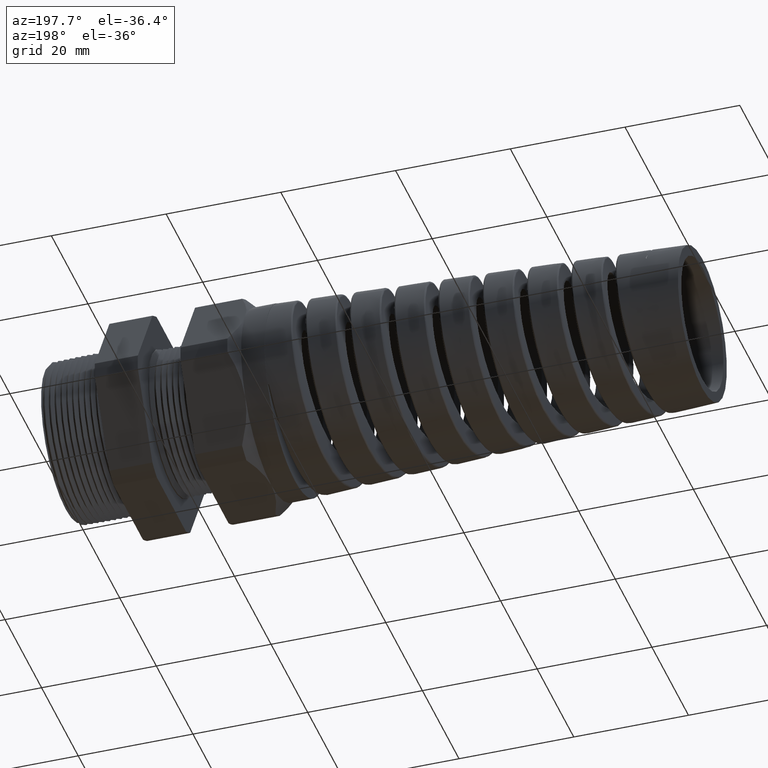
[diagram: clean part render]
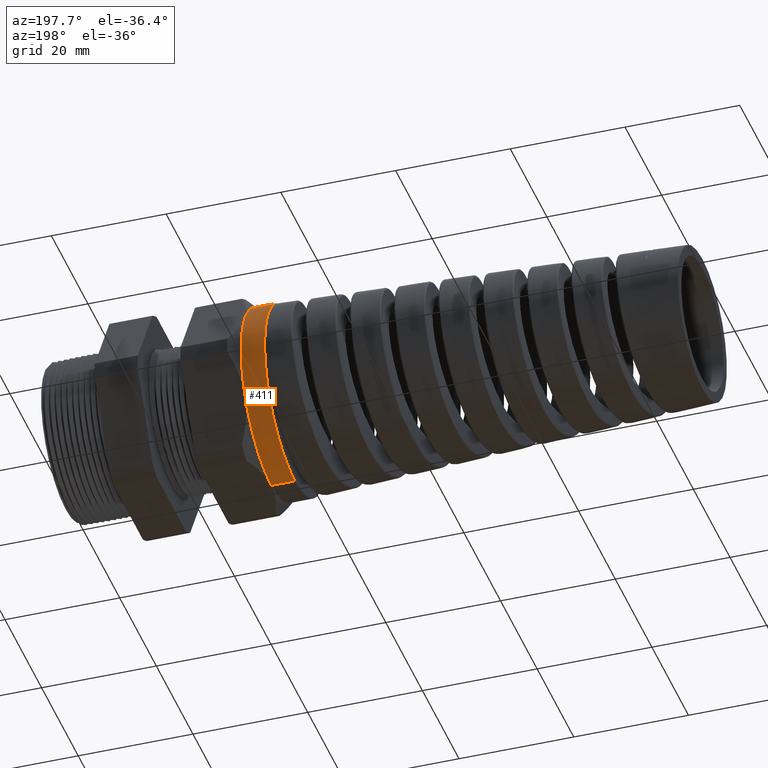
[diagram: same view with one face highlighted and labeled with its STEP entity id]
A machine part, auxiliary view. The second image highlights one B-rep face of the part: STEP entity #411.
In plain terms, the highlighted cylindrical surface (partial cylindrical patch) has radius 16.51 mm, axis along (1, 0, 0).
Its self-contained STEP definition (entity closure, byte-faithful):
#396 = EDGE_CURVE ( 'NONE', #397, #476, #2125, .T. ) ;
#397 = VERTEX_POINT ( 'NONE', #2120 ) ;
#398 = ORIENTED_EDGE ( 'NONE', *, *, #399, .F. ) ;
#399 = EDGE_CURVE ( 'NONE', #400, #397, #2119, .T. ) ;
#400 = VERTEX_POINT ( 'NONE', #2114 ) ;
#401 = ORIENTED_EDGE ( 'NONE', *, *, #402, .F. ) ;
#402 = EDGE_CURVE ( 'NONE', #416, #400, #2113, .T. ) ;
#411 = ADVANCED_FACE ( 'NONE', ( #2202 ), #2229, .T. ) ;
#412 = EDGE_LOOP ( 'NONE', ( #413, #417, #474, #477, #398, #401 ) ) ;
#413 = ORIENTED_EDGE ( 'NONE', *, *, #414, .F. ) ;
#414 = EDGE_CURVE ( 'NONE', #415, #416, #2224, .T. ) ;
#415 = VERTEX_POINT ( 'NONE', #2220 ) ;
#416 = VERTEX_POINT ( 'NONE', #2219 ) ;
#417 = ORIENTED_EDGE ( 'NONE', *, *, #472, .T. ) ;
#472 = EDGE_CURVE ( 'NONE', #415, #473, #2712, .T. ) ;
#473 = VERTEX_POINT ( 'NONE', #2704 ) ;
#474 = ORIENTED_EDGE ( 'NONE', *, *, #475, .F. ) ;
#475 = EDGE_CURVE ( 'NONE', #476, #473, #2783, .T. ) ;
#476 = VERTEX_POINT ( 'NONE', #2778 ) ;
#477 = ORIENTED_EDGE ( 'NONE', *, *, #396, .F. ) ;
#2110 = DIRECTION ( 'NONE',  ( 1.000000000000000000, 0.0000000000000000000, 0.0000000000000000000 ) ) ;
#2111 = VECTOR ( 'NONE', #2110, 39.37007874015748100 ) ;
#2112 = CARTESIAN_POINT ( 'NONE',  ( 0.09602717987635048200, 0.0000000000000000000, -0.6500000000000000200 ) ) ;
#2113 = LINE ( 'NONE', #2112, #2111 ) ;
#2114 = CARTESIAN_POINT ( 'NONE',  ( -1.291889763779527500, 0.0000000000000000000, -0.6500000000000000200 ) ) ;
#2115 = DIRECTION ( 'NONE',  ( 0.0000000000000000000, 0.0000000000000000000, -1.000000000000000000 ) ) ;
#2116 = DIRECTION ( 'NONE',  ( 1.000000000000000000, 0.0000000000000000000, 0.0000000000000000000 ) ) ;
#2117 = CARTESIAN_POINT ( 'NONE',  ( -1.291889763779527500, 0.0000000000000000000, 0.0000000000000000000 ) ) ;
#2118 = AXIS2_PLACEMENT_3D ( 'NONE', #2117, #2116, #2115 ) ;
#2119 = CIRCLE ( 'NONE', #2118, 0.6500000000000000200 ) ;
#2120 = CARTESIAN_POINT ( 'NONE',  ( -1.291889763779527500, 0.5629165124598852800, -0.3249999999999997900 ) ) ;
#2121 = DIRECTION ( 'NONE',  ( 0.0000000000000000000, 0.0000000000000000000, -1.000000000000000000 ) ) ;
#2122 = DIRECTION ( 'NONE',  ( 1.000000000000000000, 0.0000000000000000000, 0.0000000000000000000 ) ) ;
#2123 = CARTESIAN_POINT ( 'NONE',  ( -1.291889763779527500, 0.0000000000000000000, 0.0000000000000000000 ) ) ;
#2124 = AXIS2_PLACEMENT_3D ( 'NONE', #2123, #2122, #2121 ) ;
#2125 = CIRCLE ( 'NONE', #2124, 0.6500000000000000200 ) ;
#2202 = FACE_OUTER_BOUND ( 'NONE', #412, .T. ) ;
#2219 = CARTESIAN_POINT ( 'NONE',  ( -1.453597361040340100, 0.0000000000000000000, -0.6500000000000000200 ) ) ;
#2220 = CARTESIAN_POINT ( 'NONE',  ( -1.453597361040340100, 7.960204194457796700E-017, 0.6500000000000000200 ) ) ;
#2221 = DIRECTION ( 'NONE',  ( 0.0000000000000000000, 0.0000000000000000000, 1.000000000000000000 ) ) ;
#2222 = DIRECTION ( 'NONE',  ( -1.000000000000000000, 0.0000000000000000000, 0.0000000000000000000 ) ) ;
#2223 = AXIS2_PLACEMENT_3D ( 'NONE', #2230, #2222, #2221 ) ;
#2224 = CIRCLE ( 'NONE', #2223, 0.6500000000000000200 ) ;
#2225 = DIRECTION ( 'NONE',  ( 0.0000000000000000000, 0.0000000000000000000, -1.000000000000000000 ) ) ;
#2226 = DIRECTION ( 'NONE',  ( 1.000000000000000000, 0.0000000000000000000, 0.0000000000000000000 ) ) ;
#2227 = CARTESIAN_POINT ( 'NONE',  ( 0.09602717987635048200, 0.0000000000000000000, 0.0000000000000000000 ) ) ;
#2228 = AXIS2_PLACEMENT_3D ( 'NONE', #2227, #2226, #2225 ) ;
#2229 = CYLINDRICAL_SURFACE ( 'NONE', #2228, 0.6500000000000000200 ) ;
#2230 = CARTESIAN_POINT ( 'NONE',  ( -1.453597361040340100, 0.0000000000000000000, 0.0000000000000000000 ) ) ;
#2704 = CARTESIAN_POINT ( 'NONE',  ( -1.291889763779527500, 0.0000000000000000000, 0.6500000000000000200 ) ) ;
#2705 = DIRECTION ( 'NONE',  ( 1.000000000000000000, 0.0000000000000000000, 0.0000000000000000000 ) ) ;
#2706 = VECTOR ( 'NONE', #2705, 39.37007874015748100 ) ;
#2707 = CARTESIAN_POINT ( 'NONE',  ( 0.09602717987635048200, 7.960204194457796700E-017, 0.6500000000000000200 ) ) ;
#2712 = LINE ( 'NONE', #2707, #2706 ) ;
#2778 = CARTESIAN_POINT ( 'NONE',  ( -1.291889763779527500, 0.5629165124598853900, 0.3249999999999999600 ) ) ;
#2779 = DIRECTION ( 'NONE',  ( 0.0000000000000000000, 0.0000000000000000000, -1.000000000000000000 ) ) ;
#2780 = DIRECTION ( 'NONE',  ( 1.000000000000000000, 0.0000000000000000000, 0.0000000000000000000 ) ) ;
#2781 = CARTESIAN_POINT ( 'NONE',  ( -1.291889763779527500, 0.0000000000000000000, 0.0000000000000000000 ) ) ;
#2782 = AXIS2_PLACEMENT_3D ( 'NONE', #2781, #2780, #2779 ) ;
#2783 = CIRCLE ( 'NONE', #2782, 0.6500000000000000200 ) ;